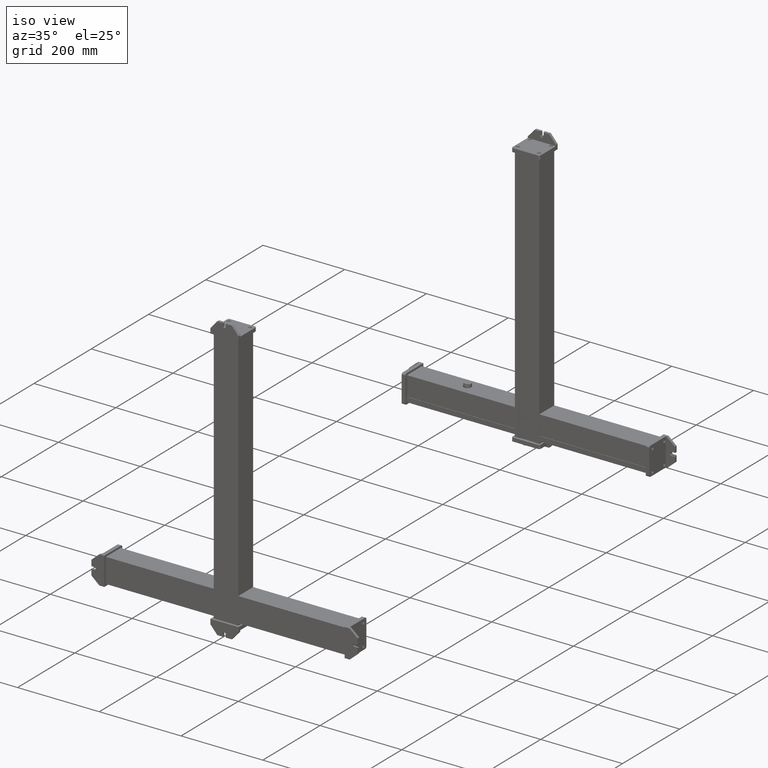
[diagram: clean part render]
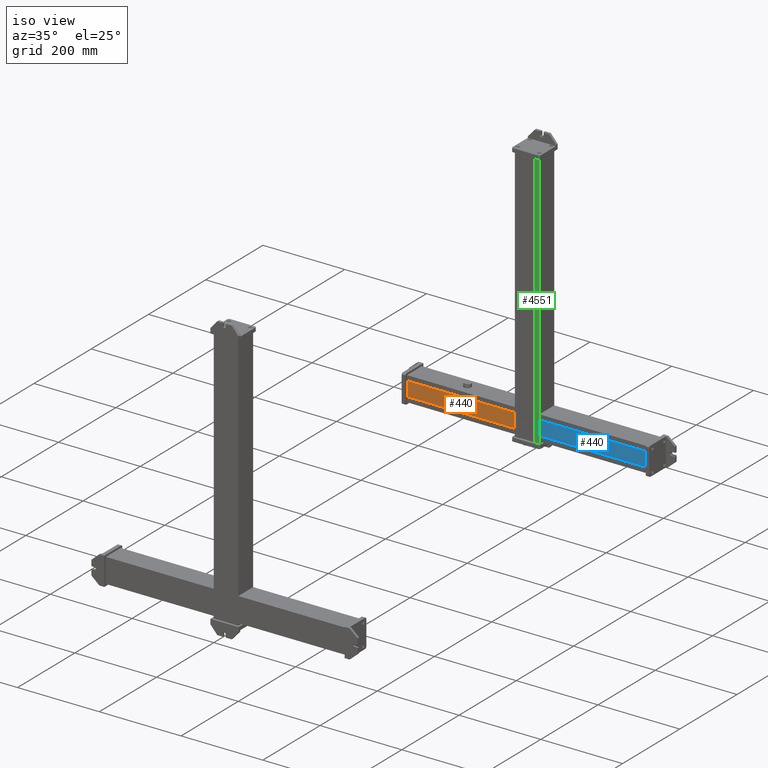
[diagram: same view with three faces highlighted in distinct colors, each labeled with its STEP entity id]
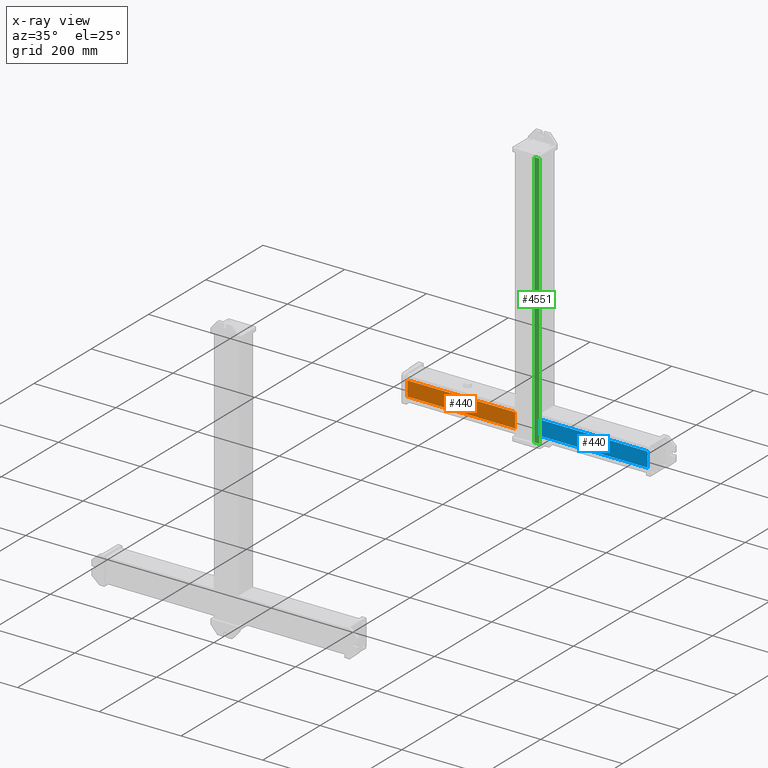
[diagram: x-ray of the same camera — body ghosted, the three highlighted faces saturated]
A machine part, iso view with three faces highlighted in distinct colors.
The next image is the same camera in x-ray (body ghosted, the three faces saturated) — at least one of them is partly hidden behind the body in this view.
Their STEP definitions:

[orange] entity #440 — the highlighted planar face has unit normal (-0, -1, 0).
#357=CARTESIAN_POINT('Vertex',(12.,51.,0.)) ;
#360=CARTESIAN_POINT('Line Origine',(30.,51.,0.)) ;
#364=CARTESIAN_POINT('Vertex',(48.,51.,0.)) ;
#397=CARTESIAN_POINT('Vertex',(12.,51.,264.)) ;
#400=CARTESIAN_POINT('Line Origine',(12.,51.,132.)) ;
#417=CARTESIAN_POINT('Axis2P3D Location',(48.,51.,0.)) ;
#422=CARTESIAN_POINT('Line Origine',(48.,51.,132.)) ;
#426=CARTESIAN_POINT('Vertex',(48.,51.,264.)) ;
#429=CARTESIAN_POINT('Line Origine',(30.,51.,264.)) ;
#361=DIRECTION('Vector Direction',(-1.,0.,0.)) ;
#401=DIRECTION('Vector Direction',(0.,0.,1.)) ;
#418=DIRECTION('Axis2P3D Direction',(0.,1.,-0.)) ;
#419=DIRECTION('Axis2P3D XDirection',(-1.,0.,0.)) ;
#423=DIRECTION('Vector Direction',(0.,0.,1.)) ;
#430=DIRECTION('Vector Direction',(-1.,0.,0.)) ;
#420=AXIS2_PLACEMENT_3D('Plane Axis2P3D',#417,#418,#419) ;
#435=ORIENTED_EDGE('',*,*,#428,.F.) ;
#436=ORIENTED_EDGE('',*,*,#366,.F.) ;
#437=ORIENTED_EDGE('',*,*,#404,.T.) ;
#438=ORIENTED_EDGE('',*,*,#433,.F.) ;
#362=VECTOR('Line Direction',#361,1.) ;
#402=VECTOR('Line Direction',#401,1.) ;
#424=VECTOR('Line Direction',#423,1.) ;
#431=VECTOR('Line Direction',#430,1.) ;
#440=ADVANCED_FACE('Body.2',(#439),#421,.T.) ;
#366=EDGE_CURVE('',#358,#365,#363,.F.) ;
#404=EDGE_CURVE('',#358,#398,#403,.T.) ;
#428=EDGE_CURVE('',#365,#427,#425,.T.) ;
#433=EDGE_CURVE('',#427,#398,#432,.T.) ;
#434=EDGE_LOOP('',(#435,#436,#437,#438)) ;
#439=FACE_OUTER_BOUND('',#434,.T.) ;
#363=LINE('Line',#360,#362) ;
#403=LINE('Line',#400,#402) ;
#425=LINE('Line',#422,#424) ;
#432=LINE('Line',#429,#431) ;
#421=PLANE('Plane',#420) ;
#358=VERTEX_POINT('',#357) ;
#365=VERTEX_POINT('',#364) ;
#398=VERTEX_POINT('',#397) ;
#427=VERTEX_POINT('',#426) ;

[blue] entity #440 — the highlighted planar face has unit normal (-0, -1, 0).
#357=CARTESIAN_POINT('Vertex',(12.,51.,0.)) ;
#360=CARTESIAN_POINT('Line Origine',(30.,51.,0.)) ;
#364=CARTESIAN_POINT('Vertex',(48.,51.,0.)) ;
#397=CARTESIAN_POINT('Vertex',(12.,51.,264.)) ;
#400=CARTESIAN_POINT('Line Origine',(12.,51.,132.)) ;
#417=CARTESIAN_POINT('Axis2P3D Location',(48.,51.,0.)) ;
#422=CARTESIAN_POINT('Line Origine',(48.,51.,132.)) ;
#426=CARTESIAN_POINT('Vertex',(48.,51.,264.)) ;
#429=CARTESIAN_POINT('Line Origine',(30.,51.,264.)) ;
#361=DIRECTION('Vector Direction',(-1.,0.,0.)) ;
#401=DIRECTION('Vector Direction',(0.,0.,1.)) ;
#418=DIRECTION('Axis2P3D Direction',(0.,1.,-0.)) ;
#419=DIRECTION('Axis2P3D XDirection',(-1.,0.,0.)) ;
#423=DIRECTION('Vector Direction',(0.,0.,1.)) ;
#430=DIRECTION('Vector Direction',(-1.,0.,0.)) ;
#420=AXIS2_PLACEMENT_3D('Plane Axis2P3D',#417,#418,#419) ;
#435=ORIENTED_EDGE('',*,*,#428,.F.) ;
#436=ORIENTED_EDGE('',*,*,#366,.F.) ;
#437=ORIENTED_EDGE('',*,*,#404,.T.) ;
#438=ORIENTED_EDGE('',*,*,#433,.F.) ;
#362=VECTOR('Line Direction',#361,1.) ;
#402=VECTOR('Line Direction',#401,1.) ;
#424=VECTOR('Line Direction',#423,1.) ;
#431=VECTOR('Line Direction',#430,1.) ;
#440=ADVANCED_FACE('Body.2',(#439),#421,.T.) ;
#366=EDGE_CURVE('',#358,#365,#363,.F.) ;
#404=EDGE_CURVE('',#358,#398,#403,.T.) ;
#428=EDGE_CURVE('',#365,#427,#425,.T.) ;
#433=EDGE_CURVE('',#427,#398,#432,.T.) ;
#434=EDGE_LOOP('',(#435,#436,#437,#438)) ;
#439=FACE_OUTER_BOUND('',#434,.T.) ;
#363=LINE('Line',#360,#362) ;
#403=LINE('Line',#400,#402) ;
#425=LINE('Line',#422,#424) ;
#432=LINE('Line',#429,#431) ;
#421=PLANE('Plane',#420) ;
#358=VERTEX_POINT('',#357) ;
#365=VERTEX_POINT('',#364) ;
#398=VERTEX_POINT('',#397) ;
#427=VERTEX_POINT('',#426) ;

[green] entity #4551 — the highlighted planar face has unit normal (0, -1, 0).
#4402=CARTESIAN_POINT('Axis2P3D Location',(60.,52.,0.)) ;
#4504=CARTESIAN_POINT('Vertex',(12.,52.,0.)) ;
#4507=CARTESIAN_POINT('Line Origine',(12.,52.,315.5)) ;
#4511=CARTESIAN_POINT('Vertex',(12.,52.,631.)) ;
#4526=CARTESIAN_POINT('Line Origine',(6.,52.,0.)) ;
#4530=CARTESIAN_POINT('Vertex',(3.5527136788E-015,52.,0.)) ;
#4533=CARTESIAN_POINT('Line Origine',(7.1054273576E-015,52.,315.5)) ;
#4537=CARTESIAN_POINT('Vertex',(3.5527136788E-015,52.,631.)) ;
#4540=CARTESIAN_POINT('Line Origine',(6.,52.,631.)) ;
#4403=DIRECTION('Axis2P3D Direction',(0.,1.,-0.)) ;
#4404=DIRECTION('Axis2P3D XDirection',(-1.,0.,0.)) ;
#4508=DIRECTION('Vector Direction',(0.,0.,1.)) ;
#4527=DIRECTION('Vector Direction',(-1.,0.,0.)) ;
#4534=DIRECTION('Vector Direction',(0.,0.,1.)) ;
#4541=DIRECTION('Vector Direction',(-1.,0.,0.)) ;
#4405=AXIS2_PLACEMENT_3D('Plane Axis2P3D',#4402,#4403,#4404) ;
#4546=ORIENTED_EDGE('',*,*,#4513,.F.) ;
#4547=ORIENTED_EDGE('',*,*,#4532,.T.) ;
#4548=ORIENTED_EDGE('',*,*,#4539,.T.) ;
#4549=ORIENTED_EDGE('',*,*,#4544,.F.) ;
#4509=VECTOR('Line Direction',#4508,1.) ;
#4528=VECTOR('Line Direction',#4527,1.) ;
#4535=VECTOR('Line Direction',#4534,1.) ;
#4542=VECTOR('Line Direction',#4541,1.) ;
#4551=ADVANCED_FACE('PartBody',(#4550),#4406,.T.) ;
#4513=EDGE_CURVE('',#4505,#4512,#4510,.T.) ;
#4532=EDGE_CURVE('',#4505,#4531,#4529,.T.) ;
#4539=EDGE_CURVE('',#4531,#4538,#4536,.T.) ;
#4544=EDGE_CURVE('',#4512,#4538,#4543,.T.) ;
#4545=EDGE_LOOP('',(#4546,#4547,#4548,#4549)) ;
#4550=FACE_OUTER_BOUND('',#4545,.T.) ;
#4510=LINE('Line',#4507,#4509) ;
#4529=LINE('Line',#4526,#4528) ;
#4536=LINE('Line',#4533,#4535) ;
#4543=LINE('Line',#4540,#4542) ;
#4406=PLANE('Plane',#4405) ;
#4505=VERTEX_POINT('',#4504) ;
#4512=VERTEX_POINT('',#4511) ;
#4531=VERTEX_POINT('',#4530) ;
#4538=VERTEX_POINT('',#4537) ;